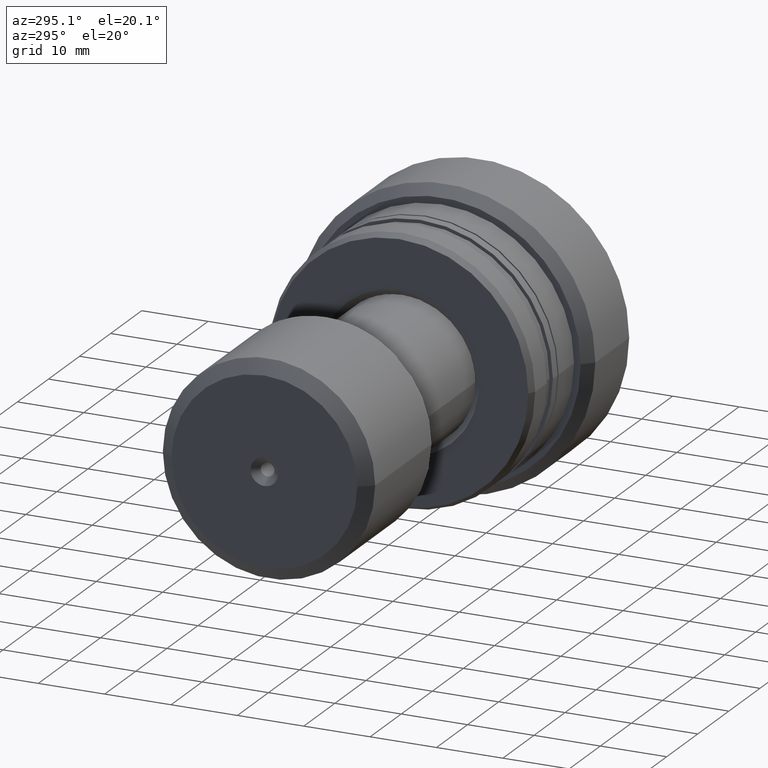
[diagram: clean part render]
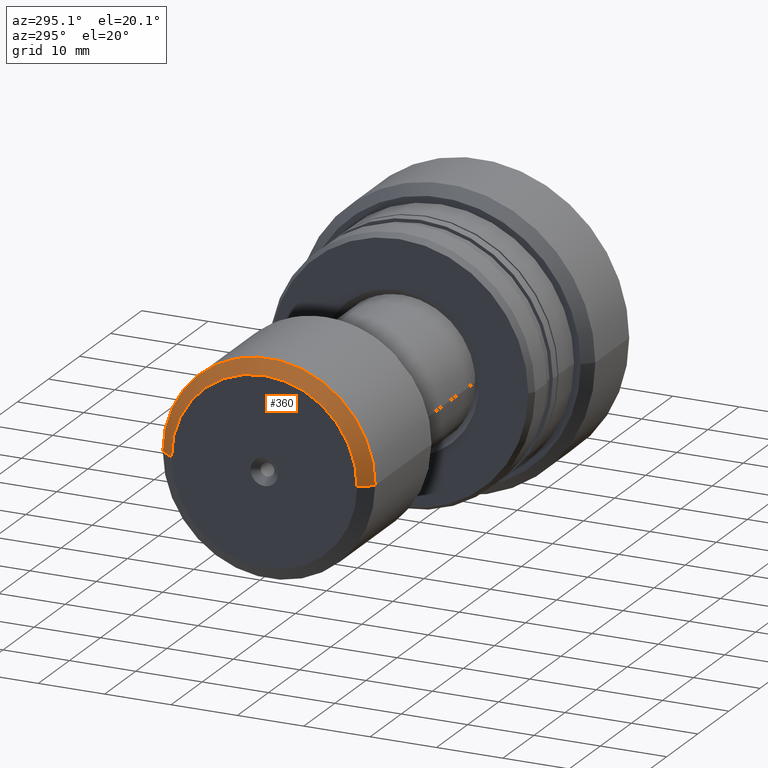
[diagram: same view with one face highlighted and labeled with its STEP entity id]
A machine part, auxiliary view. The second image highlights one B-rep face of the part: STEP entity #360.
In plain terms, the highlighted conical surface has half-angle 53.13 deg.
Its self-contained STEP definition (entity closure, byte-faithful):
#5 = ORIENTED_EDGE ( 'NONE', *, *, #1347, .F. ) ;
#80 = AXIS2_PLACEMENT_3D ( 'NONE', #1924, #111, #1963 ) ;
#111 = DIRECTION ( 'NONE',  ( -1.000000000000000000, -1.069542322069065801E-17, -0.000000000000000000 ) ) ;
#153 = LINE ( 'NONE', #761, #910 ) ;
#189 = DIRECTION ( 'NONE',  ( 1.000000000000000000, 1.069542322069065801E-17, 0.000000000000000000 ) ) ;
#360 = ADVANCED_FACE ( 'NONE', ( #999 ), #2310, .T. ) ;
#430 = VECTOR ( 'NONE', #2308, 999.9999999999998863 ) ;
#442 = ORIENTED_EDGE ( 'NONE', *, *, #2265, .F. ) ;
#480 = CARTESIAN_POINT ( 'NONE',  ( 1.415033668626956010E-15, 14.00000000000000000, 0.000000000000000000 ) ) ;
#614 = CARTESIAN_POINT ( 'NONE',  ( 1.564769593716625324E-15, 1.673587304766748118E-32, 0.000000000000000000 ) ) ;
#678 = CIRCLE ( 'NONE', #686, 16.00000000000000000 ) ;
#686 = AXIS2_PLACEMENT_3D ( 'NONE', #847, #1593, #2296 ) ;
#761 = CARTESIAN_POINT ( 'NONE',  ( 1.415033668626956010E-15, 14.00000000000000000, 0.000000000000000000 ) ) ;
#827 = LINE ( 'NONE', #1953, #430 ) ;
#847 = CARTESIAN_POINT ( 'NONE',  ( 1.500000000000001998, 1.604313483103600935E-17, 0.000000000000000000 ) ) ;
#878 = EDGE_LOOP ( 'NONE', ( #442, #1933, #1502, #5 ) ) ;
#910 = VECTOR ( 'NONE', #1501, 999.9999999999998863 ) ;
#999 = FACE_OUTER_BOUND ( 'NONE', #878, .T. ) ;
#1081 = VERTEX_POINT ( 'NONE', #1339 ) ;
#1191 = CIRCLE ( 'NONE', #80, 14.00000000000000000 ) ;
#1244 = EDGE_CURVE ( 'NONE', #1431, #1335, #827, .T. ) ;
#1305 = EDGE_CURVE ( 'NONE', #1335, #1081, #678, .T. ) ;
#1335 = VERTEX_POINT ( 'NONE', #2423 ) ;
#1339 = CARTESIAN_POINT ( 'NONE',  ( 1.500000000000001776, 16.00000000000000000, 0.000000000000000000 ) ) ;
#1347 = EDGE_CURVE ( 'NONE', #1592, #1081, #153, .T. ) ;
#1431 = VERTEX_POINT ( 'NONE', #1761 ) ;
#1501 = DIRECTION ( 'NONE',  ( 0.6000000000000001998, 0.7999999999999999334, 0.000000000000000000 ) ) ;
#1502 = ORIENTED_EDGE ( 'NONE', *, *, #1305, .T. ) ;
#1592 = VERTEX_POINT ( 'NONE', #480 ) ;
#1593 = DIRECTION ( 'NONE',  ( -1.000000000000000000, -1.069542322069065801E-17, -0.000000000000000000 ) ) ;
#1717 = DIRECTION ( 'NONE',  ( -1.069542322069066109E-17, 1.000000000000000000, 0.000000000000000000 ) ) ;
#1761 = CARTESIAN_POINT ( 'NONE',  ( 1.714505518806294638E-15, -14.00000000000000000, 1.836970198721029589E-15 ) ) ;
#1924 = CARTESIAN_POINT ( 'NONE',  ( 1.564769593716625324E-15, 1.673587304766748118E-32, 0.000000000000000000 ) ) ;
#1933 = ORIENTED_EDGE ( 'NONE', *, *, #1244, .T. ) ;
#1953 = CARTESIAN_POINT ( 'NONE',  ( 1.714505518806294638E-15, -14.00000000000000000, 1.714505518806294638E-15 ) ) ;
#1963 = DIRECTION ( 'NONE',  ( 1.069542322069066109E-17, -1.000000000000000000, 0.000000000000000000 ) ) ;
#2107 = AXIS2_PLACEMENT_3D ( 'NONE', #614, #189, #1717 ) ;
#2265 = EDGE_CURVE ( 'NONE', #1431, #1592, #1191, .T. ) ;
#2296 = DIRECTION ( 'NONE',  ( 1.355252715606880543E-17, -1.000000000000000000, 0.000000000000000000 ) ) ;
#2308 = DIRECTION ( 'NONE',  ( 0.6000000000000001998, -0.7999999999999999334, 9.797174393178826150E-17 ) ) ;
#2310 = CONICAL_SURFACE ( 'NONE', #2107, 14.00000000000000000, 0.9272952180016120760 ) ;
#2423 = CARTESIAN_POINT ( 'NONE',  ( 1.500000000000002220, -16.00000000000000000, 1.959434878635765526E-15 ) ) ;